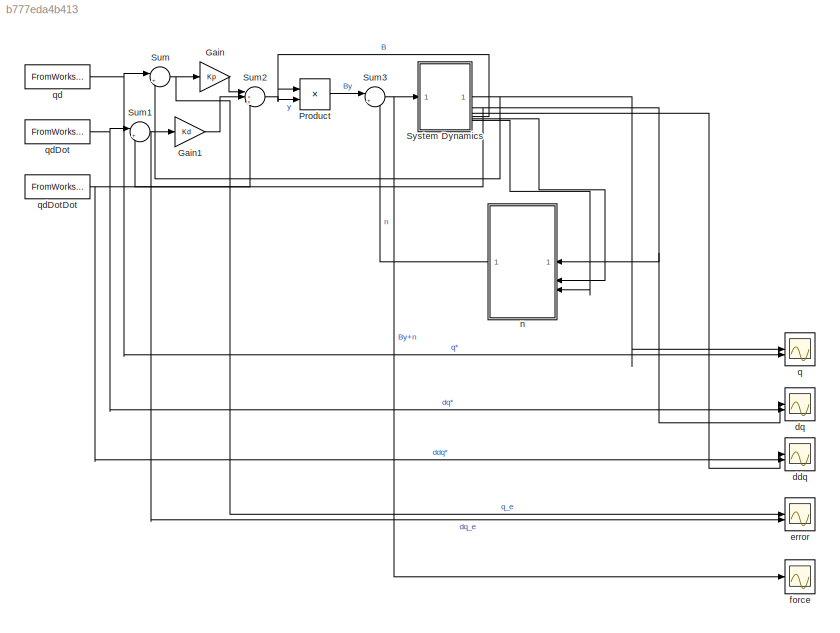
MODEL slx_b777eda4b413
KIND model
CONFIG AbsTol = auto
CONFIG EnableMultiTasking = off
CONFIG FixedStep = t_step
CONFIG MaxStep = auto
CONFIG MinStep = auto
CONFIG RelTol = 1e-3
CONFIG SampleTimeConstraint = Unconstrained
CONFIG SolverName = ode1
CONFIG StartTime = 0.0
CONFIG StopTime = Tf
BLOCK [Gain] Gain
  Gain = Kp
  Multiplication = Matrix(K*u)
BLOCK [Gain] Gain1
  Gain = Kd
  Multiplication = Matrix(K*u)
BLOCK [Product] Product
  Multiplication = Matrix(*)
BLOCK [Sum] Sum
  Inputs = |+-
BLOCK [Sum] Sum1
  Inputs = |+-
BLOCK [Sum] Sum2
  Inputs = |+++
BLOCK [Sum] Sum3
  Inputs = |++
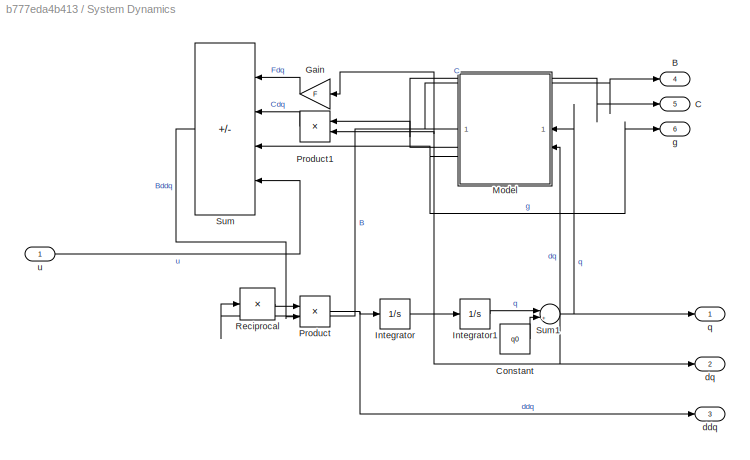
BLOCK [SubSystem] System Dynamics
BLOCK [Outport] System Dynamics/B
  Port = 4
BLOCK [Outport] System Dynamics/C
  Port = 5
BLOCK [Constant] System Dynamics/Constant
  Value = q0
BLOCK [Gain] System Dynamics/Gain
  Gain = F
  Multiplication = Matrix(K*u)
BLOCK [Integrator] System Dynamics/Integrator
  InitialCondition = ddq0
BLOCK [Integrator] System Dynamics/Integrator1
  InitialCondition = dq0
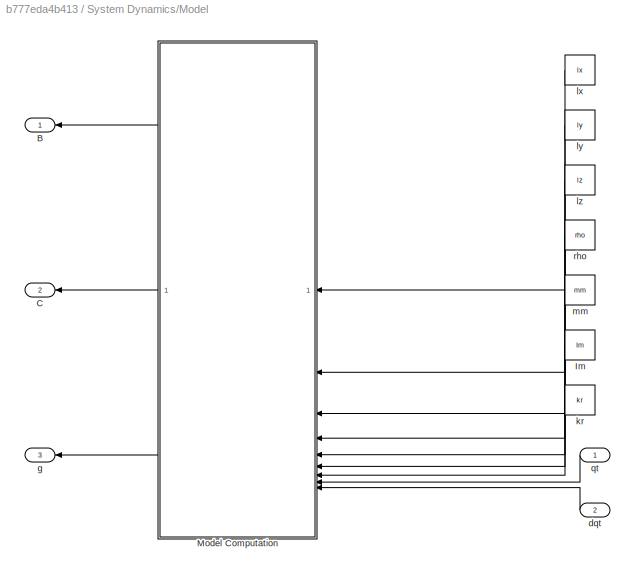
BLOCK [SubSystem] System Dynamics/Model
BLOCK [Outport] System Dynamics/Model/B
BLOCK [Outport] System Dynamics/Model/C
  Port = 2
BLOCK [Constant] System Dynamics/Model/Im
  Value = Im
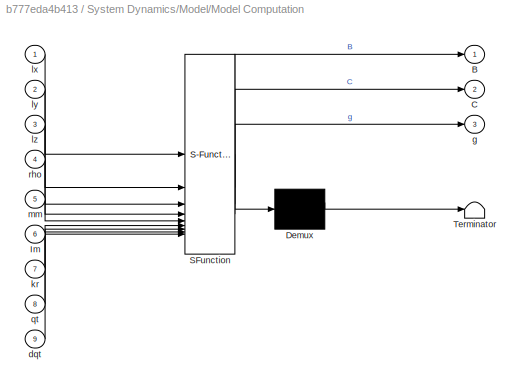
BLOCK [SubSystem] System Dynamics/Model/Model Computation
  ErrorFcn = Stateflow.Translate.translate
  LibrarySourceBlock = simulink/User-Defined\nFunctions/MATLAB Function
  PermitHierarchicalResolution = ExplicitOnly
  SFBlockType = MATLAB Function
  TreatAsAtomicUnit = on
BLOCK [Demux] System Dynamics/Model/Model Computation/ Demux 
  Outputs = 1
BLOCK [S-Function] System Dynamics/Model/Model Computation/ SFunction 
  EnableBusSupport = on
  FunctionName = sf_sfun
  PortCounts = [9 4]
  SFcnIsStateOwnerBlock = off
  SFunctionDeploymentMode = off
  Tag = Stateflow S-Function 2
BLOCK [Terminator] System Dynamics/Model/Model Computation/ Terminator 
BLOCK [Outport] System Dynamics/Model/Model Computation/B
BLOCK [Outport] System Dynamics/Model/Model Computation/C
  Port = 2
BLOCK [Inport] System Dynamics/Model/Model Computation/Im
  Port = 6
BLOCK [Inport] System Dynamics/Model/Model Computation/dqt
  Port = 9
BLOCK [Outport] System Dynamics/Model/Model Computation/g
  Port = 3
BLOCK [Inport] System Dynamics/Model/Model Computation/kr
  Port = 7
BLOCK [Inport] System Dynamics/Model/Model Computation/lx
BLOCK [Inport] System Dynamics/Model/Model Computation/ly
  Port = 2
BLOCK [Inport] System Dynamics/Model/Model Computation/lz
  Port = 3
BLOCK [Inport] System Dynamics/Model/Model Computation/mm
  Port = 5
BLOCK [Inport] System Dynamics/Model/Model Computation/qt
  Port = 8
BLOCK [Inport] System Dynamics/Model/Model Computation/rho
  Port = 4
BLOCK [Inport] System Dynamics/Model/dqt
  Port = 2
BLOCK [Outport] System Dynamics/Model/g
  Port = 3
BLOCK [Constant] System Dynamics/Model/kr
  Value = kr
BLOCK [Constant] System Dynamics/Model/lx
  Value = lx
BLOCK [Constant] System Dynamics/Model/ly
  Value = ly
BLOCK [Constant] System Dynamics/Model/lz
  Value = lz
BLOCK [Constant] System Dynamics/Model/mm
  Value = mm
BLOCK [Inport] System Dynamics/Model/qt
BLOCK [Constant] System Dynamics/Model/rho
  Value = rho
BLOCK [Product] System Dynamics/Product
  Multiplication = Matrix(*)
BLOCK [Product] System Dynamics/Product1
  Multiplication = Matrix(*)
BLOCK [Product] System Dynamics/Reciprocal
  Inputs = /
  Multiplication = Matrix(*)
BLOCK [Sum] System Dynamics/Sum
  IconShape = rectangular
  Inputs = |---+
BLOCK [Sum] System Dynamics/Sum1
  Inputs = |++
BLOCK [Outport] System Dynamics/ddq
  Port = 3
BLOCK [Outport] System Dynamics/dq
  Port = 2
BLOCK [Outport] System Dynamics/g
  Port = 6
BLOCK [Outport] System Dynamics/q
BLOCK [Inport] System Dynamics/u
BLOCK [Scope] ddq
  Floating = off
  NumInputPorts = 2
  ScopeSpecificationString = Simulink.scopes.TimeScopeBlockCfg('CurrentConfiguration', extmgr.ConfigurationSet(extmgr.Configuration('Core','General UI',true),extmgr.Configuration('Core','Source UI',true),extmgr.Configuration('Sources','WiredSimulink',true,'DataLoggingVariableName','ScopeData2'),extmgr.Configuration('Visuals','Time Domain',true,'SerializedDisplays',{struct('MinYLimReal','-1.38591','MaxYLimReal','1.39378','YLab...<+1583ch>
BLOCK [Scope] dq
  Floating = off
  NumInputPorts = 2
  ScopeSpecificationString = Simulink.scopes.TimeScopeBlockCfg('CurrentConfiguration', extmgr.ConfigurationSet(extmgr.Configuration('Core','General UI',true),extmgr.Configuration('Core','Source UI',true),extmgr.Configuration('Sources','WiredSimulink',true,'DataLoggingVariableName','ScopeData1'),extmgr.Configuration('Visuals','Time Domain',true,'SerializedDisplays',{struct('MinYLimReal','-0.18484','MaxYLimReal','1.62002','YLab...<+1488ch>
BLOCK [Scope] error
  Floating = off
  NumInputPorts = 2
  ScopeSpecificationString = Simulink.scopes.TimeScopeBlockCfg('CurrentConfiguration', extmgr.ConfigurationSet(extmgr.Configuration('Core','General UI',true),extmgr.Configuration('Core','Source UI',true),extmgr.Configuration('Sources','WiredSimulink',true,'DataLoggingVariableName','ScopeData3'),extmgr.Configuration('Visuals','Time Domain',true,'SerializedDisplays',{struct('MinYLimReal','-0.01066','MaxYLimReal','0.0108','YLabe...<+1460ch>
BLOCK [Scope] force
  Floating = off
  NumInputPorts = 1
  ScopeSpecificationString = Simulink.scopes.TimeScopeBlockCfg('CurrentConfiguration', extmgr.ConfigurationSet(extmgr.Configuration('Core','General UI',true),extmgr.Configuration('Core','Source UI',true),extmgr.Configuration('Sources','WiredSimulink',true,'DataLoggingVariableName','ScopeData4'),extmgr.Configuration('Visuals','Time Domain',true,'SerializedDisplays',{struct('MinYLimReal','-1.36428','MaxYLimReal','1.35246','YLab...<+1443ch>
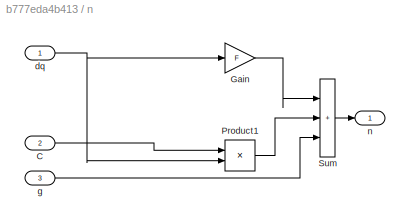
BLOCK [SubSystem] n
BLOCK [Inport] n/C
  Port = 2
BLOCK [Gain] n/Gain
  Gain = F
  Multiplication = Matrix(K*u)
BLOCK [Product] n/Product1
  Multiplication = Matrix(*)
BLOCK [Sum] n/Sum
  IconShape = rectangular
  Inputs = |+++
BLOCK [Inport] n/dq
BLOCK [Inport] n/g
  Port = 3
BLOCK [Outport] n/n
BLOCK [Scope] q
  Floating = off
  NumInputPorts = 2
  ScopeSpecificationString = Simulink.scopes.TimeScopeBlockCfg('CurrentConfiguration', extmgr.ConfigurationSet(extmgr.Configuration('Core','General UI',true),extmgr.Configuration('Core','Source UI',true),extmgr.Configuration('Sources','WiredSimulink',true),extmgr.Configuration('Visuals','Time Domain',true,'SerializedDisplays',{struct('MinYLimReal','-1.8384','MaxYLimReal','1.79138','YLabelReal','','MinYLimMag','0.00000','MaxYL...<+1417ch>
BLOCK [FromWorkspace] qd
  OutDataTypeStr = double
  SampleTime = t_step
  VariableName = [t', qd(:,1), qd(:,1)]
BLOCK [FromWorkspace] qdDot
  OutDataTypeStr = double
  SampleTime = t_step
  VariableName = [t', qd(:,2), qd(:,2)]
BLOCK [FromWorkspace] qdDotDot
  OutDataTypeStr = double
  SampleTime = t_step
  VariableName = [t', qd(:,3), qd(:,3)]
LINE Gain1:1 -> Sum2:2
LINE Gain:1 -> Sum2:1
LINE Product:1 -> Sum3:1
NET Sum1:1 -> Gain1:1, error:2
LINE Sum2:1 -> Product:2
NET Sum3:1 -> System Dynamics:1, force:1
NET Sum:1 -> Gain:1, error:1
LINE System Dynamics/Constant:1 -> System Dynamics/Sum1:2
LINE System Dynamics/Gain:1 -> System Dynamics/Sum:1
LINE System Dynamics/Integrator1:1 -> System Dynamics/Sum1:1
NET System Dynamics/Integrator:1 -> System Dynamics/Gain:1, System Dynamics/Integrator1:1, System Dynamics/Model:2, System Dynamics/Product1:2, System Dynamics/dq:1
LINE System Dynamics/Model/Im:1 -> System Dynamics/Model/Model Computation:6
LINE System Dynamics/Model/Model Computation:1 -> System Dynamics/Model/B:1
LINE System Dynamics/Model/Model Computation:2 -> System Dynamics/Model/C:1
LINE System Dynamics/Model/Model Computation:3 -> System Dynamics/Model/g:1
LINE System Dynamics/Model/dqt:1 -> System Dynamics/Model/Model Computation:9
LINE System Dynamics/Model/kr:1 -> System Dynamics/Model/Model Computation:7
LINE System Dynamics/Model/lx:1 -> System Dynamics/Model/Model Computation:1
LINE System Dynamics/Model/ly:1 -> System Dynamics/Model/Model Computation:2
LINE System Dynamics/Model/lz:1 -> System Dynamics/Model/Model Computation:3
LINE System Dynamics/Model/mm:1 -> System Dynamics/Model/Model Computation:5
LINE System Dynamics/Model/qt:1 -> System Dynamics/Model/Model Computation:8
LINE System Dynamics/Model/rho:1 -> System Dynamics/Model/Model Computation:4
NET System Dynamics/Model:1 -> System Dynamics/B:1, System Dynamics/Reciprocal:1
NET System Dynamics/Model:2 -> System Dynamics/C:1, System Dynamics/Product1:1
NET System Dynamics/Model:3 -> System Dynamics/Sum:3, System Dynamics/g:1
LINE System Dynamics/Product1:1 -> System Dynamics/Sum:2
NET System Dynamics/Product:1 -> System Dynamics/Integrator:1, System Dynamics/ddq:1
LINE System Dynamics/Reciprocal:1 -> System Dynamics/Product:1
NET System Dynamics/Sum1:1 -> System Dynamics/Model:1, System Dynamics/q:1
LINE System Dynamics/Sum:1 -> System Dynamics/Product:2
LINE System Dynamics/u:1 -> System Dynamics/Sum:4
NET System Dynamics:1 -> Sum:2, q:1
NET System Dynamics:2 -> Sum1:2, dq:1, n:1
LINE System Dynamics:3 -> ddq:1
LINE System Dynamics:4 -> Product:1
LINE System Dynamics:5 -> n:2
LINE System Dynamics:6 -> n:3
LINE n/C:1 -> n/Product1:1
LINE n/Gain:1 -> n/Sum:1
LINE n/Product1:1 -> n/Sum:2
LINE n/Sum:1 -> n/n:1
NET n/dq:1 -> n/Gain:1, n/Product1:2
LINE n/g:1 -> n/Sum:3
LINE n:1 -> Sum3:2
NET qd:1 -> Sum:1, q:2
NET qdDot:1 -> Sum1:1, dq:2
NET qdDotDot:1 -> Sum2:3, ddq:2
note: NET lines group one-source signal fan-out (src -> all destinations, sorted); 1:1 wires keep LINE
CHART System Dynamics/Model/Model Computation states=1 transitions=1
  STATE_LABEL 'eML_blk_kernel()'
  STATE_LABEL "SCRIPT:\nfunction [B, C, g] = fcn(lx,ly,lz,rho,mm,Im,kr, qt,dqt)\ncoder.extrinsic('generatedata');\nB = zeros(2);\nC = zeros(2);\ng = zeros(2,1);\n[B, C, g] = generatedata(lx,ly,lz,rho,mm,Im,kr, qt,dqt);\n"
CHART  states=0 transitions=0
